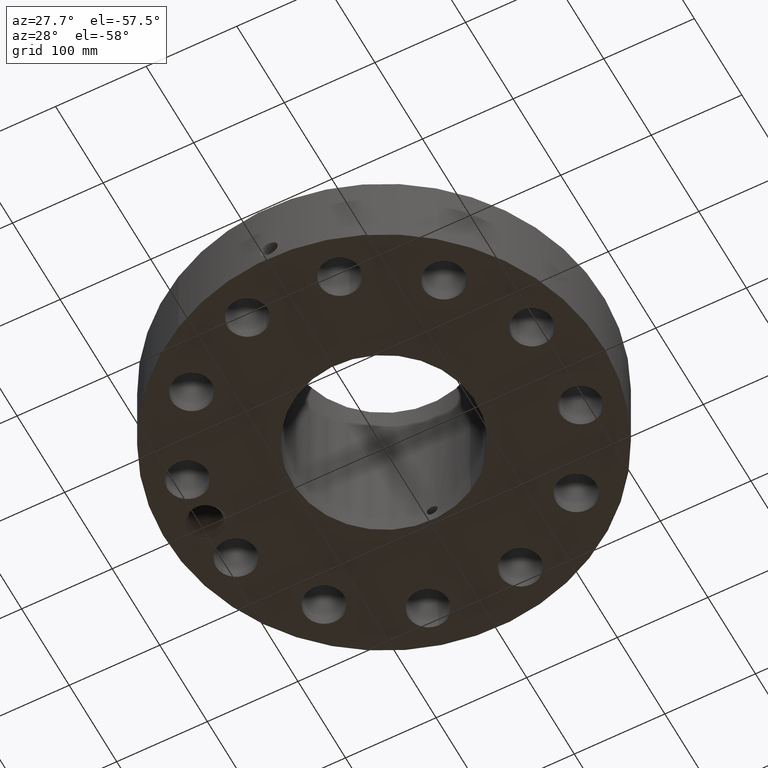
[diagram: clean part render]
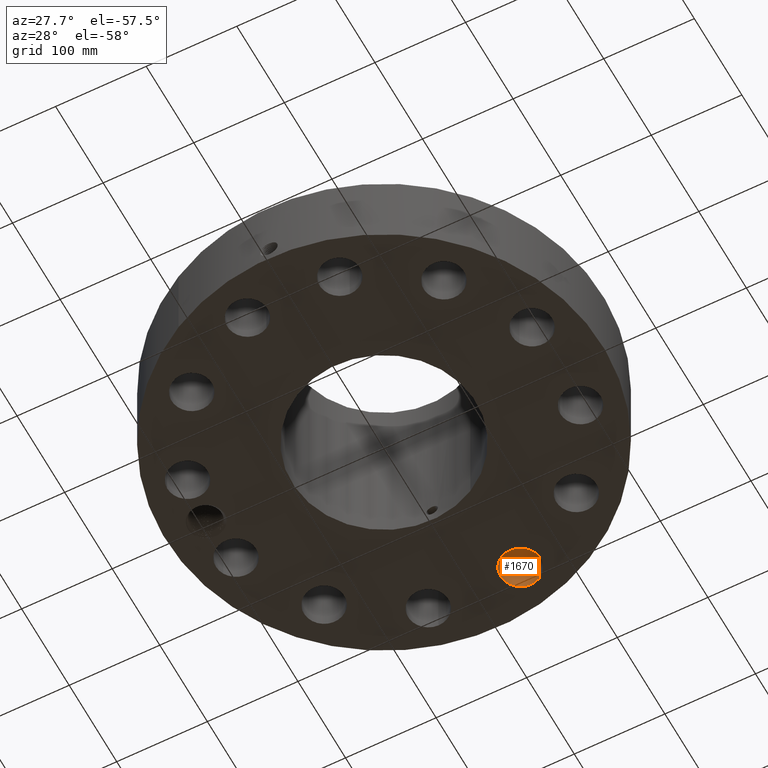
[diagram: same view with one face highlighted and labeled with its STEP entity id]
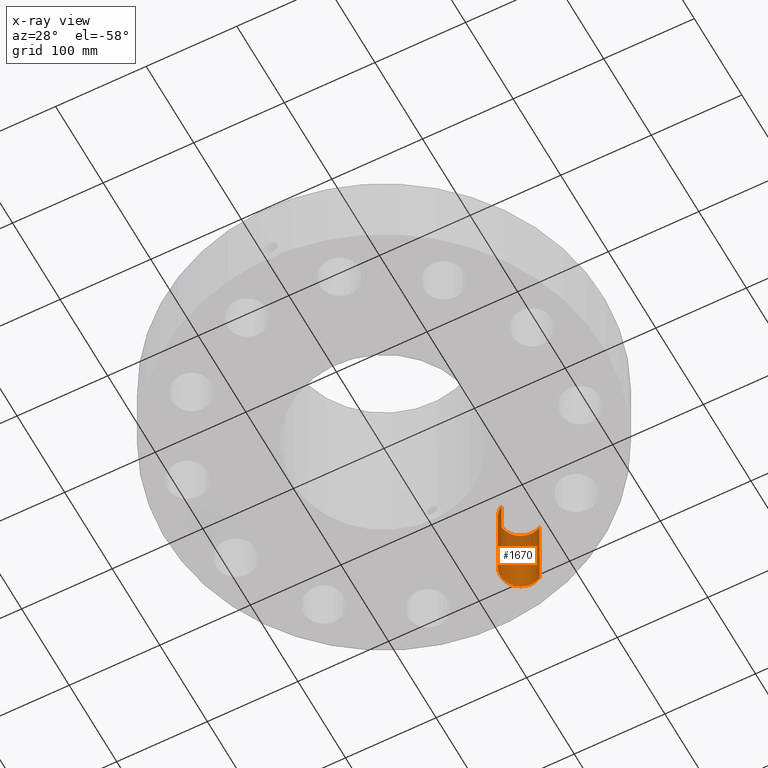
[diagram: x-ray of the same camera — body ghosted, the highlighted face saturated]
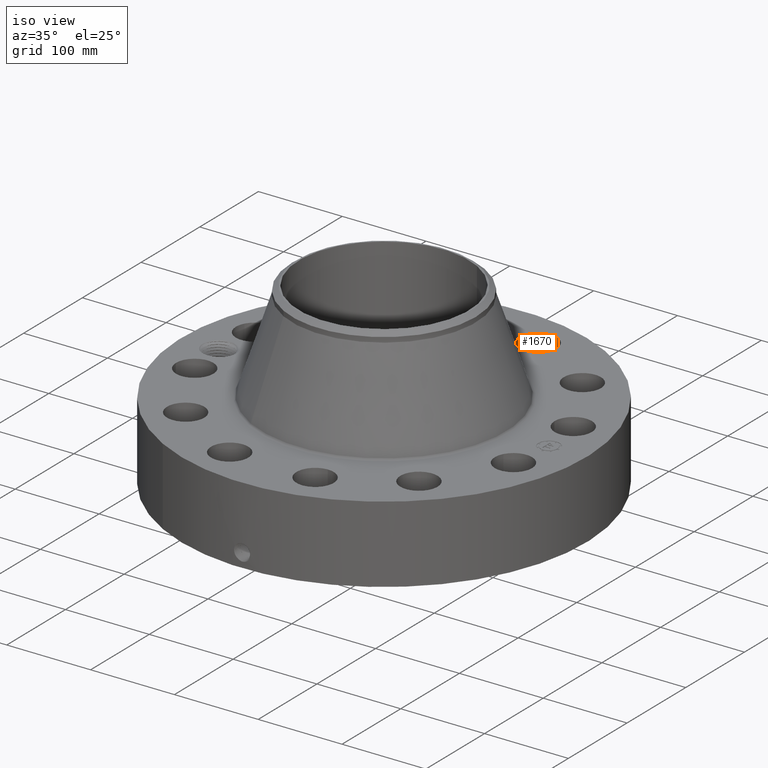
[diagram: same view with one face highlighted and labeled with its STEP entity id]
A machine part, auxiliary view. The second image highlights one B-rep face of the part: STEP entity #1670.
The next image is the same camera in x-ray: the body ghosted, the highlighted face saturated — about 29% of this face is hidden behind the body in this view.
A second angle (iso view) of the same face is appended — the face is thin or edge-on in the first view.
In plain terms, the highlighted cylindrical surface (edge-blend (fillet) strip) has radius 22.225 mm, axis along (0, 0, -1).
Its self-contained STEP definition (entity closure, byte-faithful):
#424=AXIS2_PLACEMENT_3D('Circle Axis2P3D',#422,#423,$) ;
#834=AXIS2_PLACEMENT_3D('Circle Axis2P3D',#832,#833,$) ;
#1652=AXIS2_PLACEMENT_3D('Cylinder Axis2P3D',#1649,#1650,#1651) ;
#422=CARTESIAN_POINT('Axis2P3D Location',(2.00584759955,7.48592515377,0.250000000001)) ;
#426=CARTESIAN_POINT('Vertex',(1.58635025327,6.71804041211,0.250000000001)) ;
#428=CARTESIAN_POINT('Vertex',(2.42534494583,8.25380989543,0.250000000001)) ;
#827=CARTESIAN_POINT('Vertex',(2.42534494583,8.25380989543,3.87000000002)) ;
#829=CARTESIAN_POINT('Vertex',(1.58635025327,6.71804041211,3.87000000002)) ;
#832=CARTESIAN_POINT('Axis2P3D Location',(2.00584759955,7.48592515377,3.87000000002)) ;
#1649=CARTESIAN_POINT('Axis2P3D Location',(2.00584759955,7.48592515377,3.86606299214)) ;
#1654=CARTESIAN_POINT('Line Origine',(1.58635025327,6.71804041211,2.06000000001)) ;
#1659=CARTESIAN_POINT('Line Origine',(2.42534494583,8.25380989543,2.06000000001)) ;
#423=DIRECTION('Axis2P3D Direction',(0.,0.,-0.0393700787402)) ;
#833=DIRECTION('Axis2P3D Direction',(0.,0.,-0.0393700787402)) ;
#1650=DIRECTION('Axis2P3D Direction',(0.,0.,-0.0393700787402)) ;
#1651=DIRECTION('Axis2P3D XDirection',(0.0188750212049,0.0345504945626,0.)) ;
#1655=DIRECTION('Vector Direction',(0.,0.,-0.0393700787402)) ;
#1660=DIRECTION('Vector Direction',(0.,0.,-0.0393700787402)) ;
#1656=VECTOR('Line Direction',#1655,0.0393700787402) ;
#1661=VECTOR('Line Direction',#1660,0.0393700787402) ;
#1665=ORIENTED_EDGE('',*,*,#1658,.F.) ;
#1666=ORIENTED_EDGE('',*,*,#430,.T.) ;
#1667=ORIENTED_EDGE('',*,*,#1663,.T.) ;
#1668=ORIENTED_EDGE('',*,*,#836,.F.) ;
#1670=ADVANCED_FACE('PartBody',(#1669),#1653,.F.) ;
#425=CIRCLE('generated circle',#424,0.875000000003) ;
#835=CIRCLE('generated circle',#834,0.875000000003) ;
#1653=CYLINDRICAL_SURFACE('generated cylinder',#1652,0.875000000003) ;
#430=EDGE_CURVE('',#427,#429,#425,.T.) ;
#836=EDGE_CURVE('',#830,#828,#835,.T.) ;
#1658=EDGE_CURVE('',#427,#830,#1657,.F.) ;
#1663=EDGE_CURVE('',#429,#828,#1662,.F.) ;
#1664=EDGE_LOOP('',(#1665,#1666,#1667,#1668)) ;
#1669=FACE_OUTER_BOUND('',#1664,.T.) ;
#1657=LINE('Line',#1654,#1656) ;
#1662=LINE('Line',#1659,#1661) ;
#427=VERTEX_POINT('',#426) ;
#429=VERTEX_POINT('',#428) ;
#828=VERTEX_POINT('',#827) ;
#830=VERTEX_POINT('',#829) ;